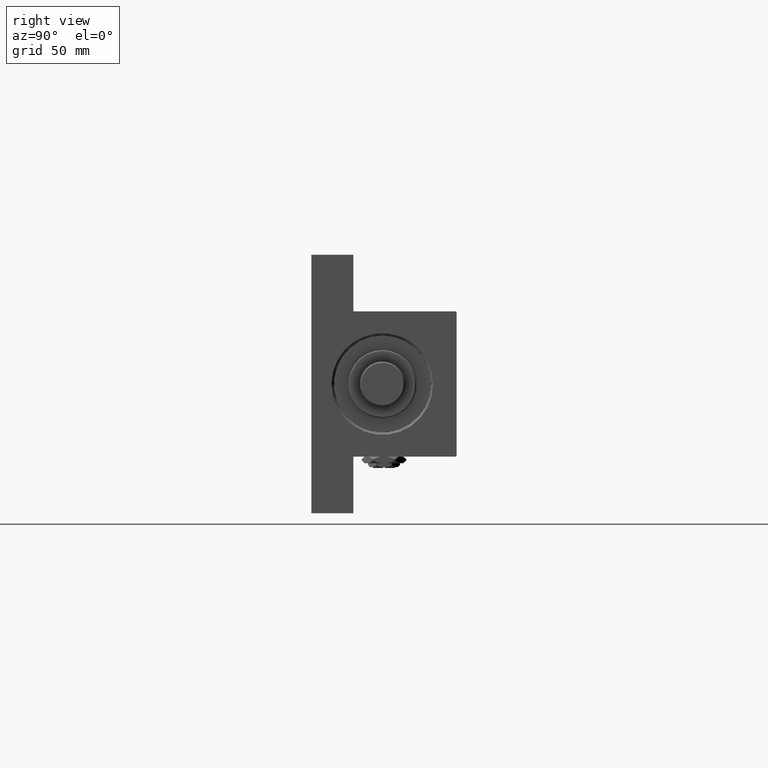
[diagram: clean part render]
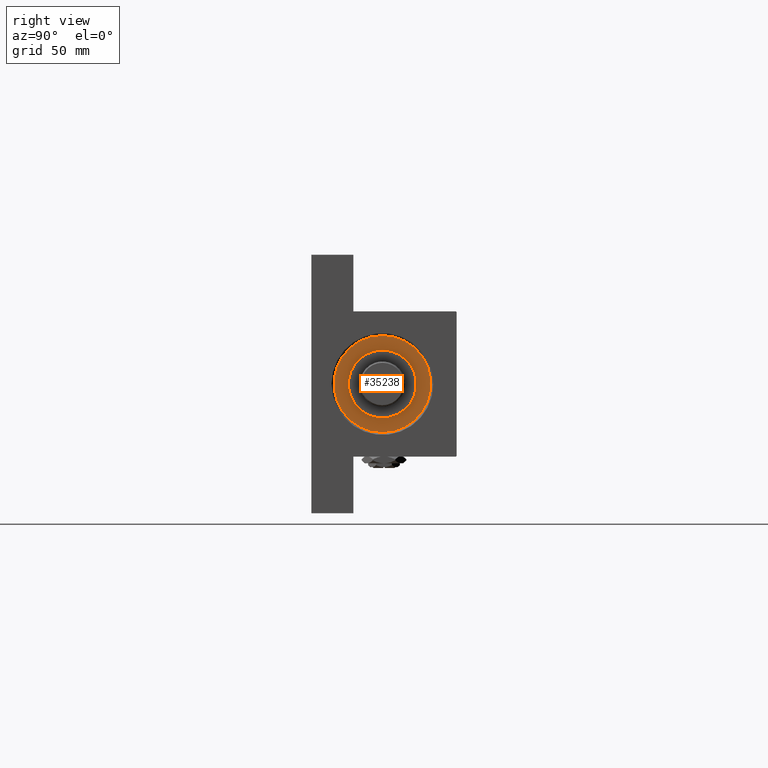
[diagram: same view with one face highlighted and labeled with its STEP entity id]
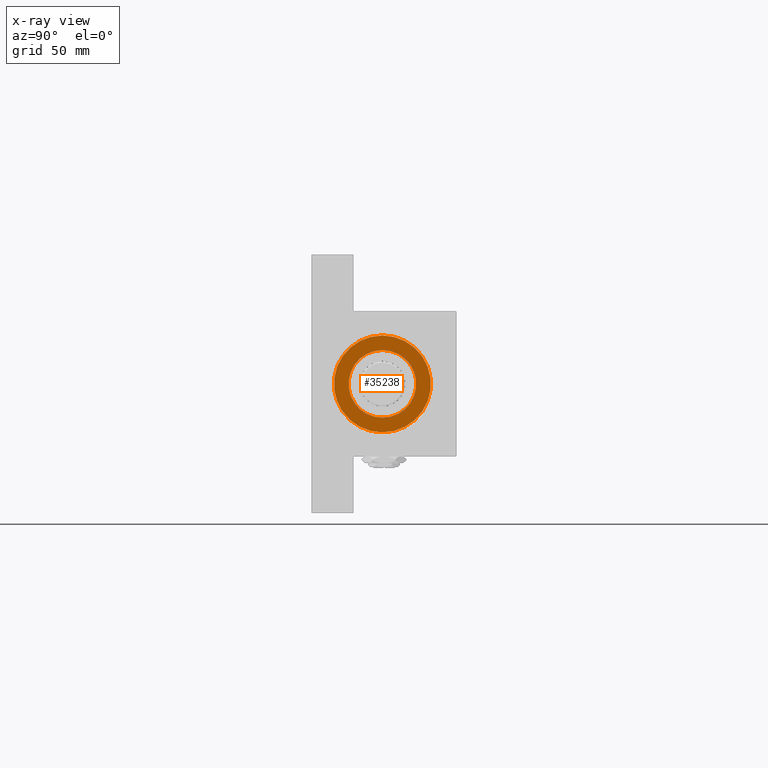
[diagram: x-ray of the same camera — body ghosted, the highlighted face saturated]
A machine part, right view. The second image highlights one B-rep face of the part: STEP entity #35238.
The next image is the same camera in x-ray: the body ghosted, the highlighted face saturated — about 0% of this face is hidden behind the body in this view.
In plain terms, the highlighted planar face has unit normal (1, 0, 0).
Its self-contained STEP definition (entity closure, byte-faithful):
#1024 = DIRECTION ( 'NONE',  ( 0.000000000000000000, 0.000000000000000000, 1.000000000000000000 ) ) ;
#1970 = DIRECTION ( 'NONE',  ( 1.000000000000000000, 0.000000000000000000, -0.000000000000000000 ) ) ;
#2050 = CIRCLE ( 'NONE', #18249, 21.00000000000000000 ) ;
#3558 = AXIS2_PLACEMENT_3D ( 'NONE', #11210, #38319, #14276 ) ;
#3639 = CARTESIAN_POINT ( 'NONE',  ( 21.00000000000000000, 2.571758278209441661E-15, 28.69999999999999929 ) ) ;
#3676 = EDGE_CURVE ( 'NONE', #36765, #31771, #21731, .T. ) ;
#4234 = ORIENTED_EDGE ( 'NONE', *, *, #24368, .F. ) ;
#4787 = CIRCLE ( 'NONE', #12867, 30.00000000000000000 ) ;
#5122 = EDGE_CURVE ( 'NONE', #44175, #25064, #4787, .T. ) ;
#5541 = DIRECTION ( 'NONE',  ( 0.000000000000000000, 0.000000000000000000, 1.000000000000000000 ) ) ;
#8159 = CARTESIAN_POINT ( 'NONE',  ( 0.000000000000000000, 0.000000000000000000, 28.69999999999999929 ) ) ;
#11210 = CARTESIAN_POINT ( 'NONE',  ( 0.000000000000000000, 0.000000000000000000, 28.69999999999999929 ) ) ;
#12196 = DIRECTION ( 'NONE',  ( 0.000000000000000000, 0.000000000000000000, 1.000000000000000000 ) ) ;
#12447 = DIRECTION ( 'NONE',  ( 1.000000000000000000, 0.000000000000000000, 0.000000000000000000 ) ) ;
#12867 = AXIS2_PLACEMENT_3D ( 'NONE', #15505, #23857, #47149 ) ;
#13143 = DIRECTION ( 'NONE',  ( 1.000000000000000000, 0.000000000000000000, 0.000000000000000000 ) ) ;
#14276 = DIRECTION ( 'NONE',  ( 1.000000000000000000, 0.000000000000000000, 0.000000000000000000 ) ) ;
#15505 = CARTESIAN_POINT ( 'NONE',  ( 0.000000000000000000, 0.000000000000000000, 28.69999999999999929 ) ) ;
#17168 = ORIENTED_EDGE ( 'NONE', *, *, #21453, .T. ) ;
#18081 = EDGE_LOOP ( 'NONE', ( #49962, #4234 ) ) ;
#18249 = AXIS2_PLACEMENT_3D ( 'NONE', #8159, #12196, #12447 ) ;
#18357 = CARTESIAN_POINT ( 'NONE',  ( -21.00000000000000000, 0.000000000000000000, 28.69999999999999929 ) ) ;
#21453 = EDGE_CURVE ( 'NONE', #25064, #44175, #38370, .T. ) ;
#21720 = CARTESIAN_POINT ( 'NONE',  ( 30.00000000000000000, 3.673940397442059178E-15, 28.69999999999999929 ) ) ;
#21731 = CIRCLE ( 'NONE', #50022, 21.00000000000000000 ) ;
#23857 = DIRECTION ( 'NONE',  ( 0.000000000000000000, 0.000000000000000000, 1.000000000000000000 ) ) ;
#24110 = FACE_OUTER_BOUND ( 'NONE', #39736, .T. ) ;
#24368 = EDGE_CURVE ( 'NONE', #31771, #36765, #2050, .T. ) ;
#25064 = VERTEX_POINT ( 'NONE', #41169 ) ;
#27390 = AXIS2_PLACEMENT_3D ( 'NONE', #47401, #1024, #1970 ) ;
#28117 = CARTESIAN_POINT ( 'NONE',  ( 0.000000000000000000, 0.000000000000000000, 28.69999999999999929 ) ) ;
#31771 = VERTEX_POINT ( 'NONE', #3639 ) ;
#34902 = ORIENTED_EDGE ( 'NONE', *, *, #5122, .T. ) ;
#35238 = ADVANCED_FACE ( 'NONE', ( #48367, #24110 ), #39564, .T. ) ;
#36765 = VERTEX_POINT ( 'NONE', #18357 ) ;
#38319 = DIRECTION ( 'NONE',  ( 0.000000000000000000, 0.000000000000000000, 1.000000000000000000 ) ) ;
#38370 = CIRCLE ( 'NONE', #3558, 30.00000000000000000 ) ;
#39564 = PLANE ( 'NONE',  #27390 ) ;
#39736 = EDGE_LOOP ( 'NONE', ( #17168, #34902 ) ) ;
#41169 = CARTESIAN_POINT ( 'NONE',  ( -30.00000000000000000, 0.000000000000000000, 28.69999999999999929 ) ) ;
#44175 = VERTEX_POINT ( 'NONE', #21720 ) ;
#47149 = DIRECTION ( 'NONE',  ( 1.000000000000000000, 0.000000000000000000, 0.000000000000000000 ) ) ;
#47401 = CARTESIAN_POINT ( 'NONE',  ( 0.000000000000000000, 0.000000000000000000, 28.69999999999999929 ) ) ;
#48367 = FACE_BOUND ( 'NONE', #18081, .T. ) ;
#49962 = ORIENTED_EDGE ( 'NONE', *, *, #3676, .F. ) ;
#50022 = AXIS2_PLACEMENT_3D ( 'NONE', #28117, #5541, #13143 ) ;